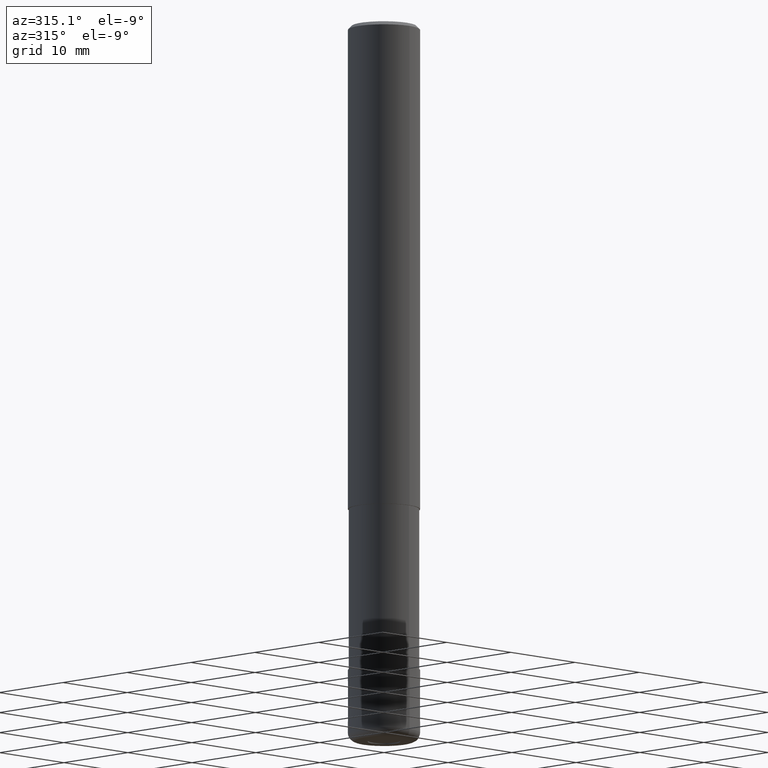
[diagram: clean part render]
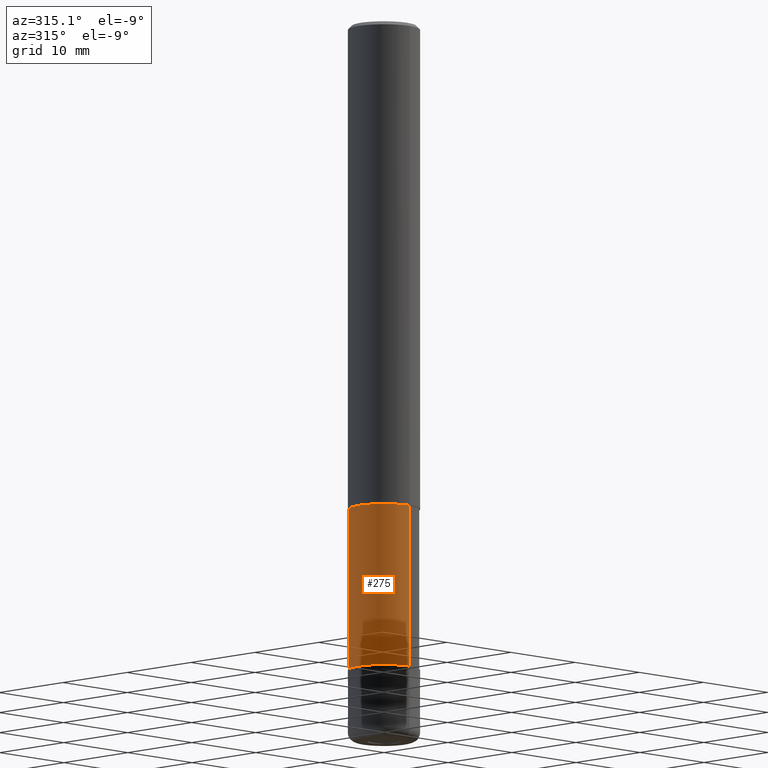
[diagram: same view with one face highlighted and labeled with its STEP entity id]
A machine part, auxiliary view. The second image highlights one B-rep face of the part: STEP entity #275.
In plain terms, the highlighted cylindrical surface (edge-blend (fillet) strip) has radius 3.9049 mm, axis along (-0, -0, 1).
Its self-contained STEP definition (entity closure, byte-faithful):
#121=VERTEX_POINT('',#308);
#137=EDGE_CURVE('',#217,#121,#326,.T.);
#213=VERTEX_POINT('',#415);
#217=VERTEX_POINT('',#419);
#255=EDGE_CURVE('',#213,#217,#461,.T.);
#267=EDGE_CURVE('',#281,#213,#475,.T.);
#275=ADVANCED_FACE('',(#484),#485,.T.);
#277=EDGE_CURVE('',#281,#121,#487,.T.);
#281=VERTEX_POINT('',#492);
#308=CARTESIAN_POINT('',(0.0,3.90495,-72.0));
#326=LINE('',#538,#539);
#415=CARTESIAN_POINT('',(4.78202658135869E-016,-3.90495,-54.0));
#419=CARTESIAN_POINT('',(0.0,3.90495,-54.0));
#461=CIRCLE('',#707,3.90495);
#475=LINE('',#723,#724);
#484=FACE_OUTER_BOUND('',#733,.T.);
#485=CYLINDRICAL_SURFACE('',#734,3.90495);
#487=CIRCLE('',#737,3.90495);
#492=CARTESIAN_POINT('',(4.78202658135869E-016,-3.90495,-72.0));
#538=CARTESIAN_POINT('',(-4.78202658135869E-016,3.90495,-63.0));
#539=VECTOR('',#772,1.0);
#707=AXIS2_PLACEMENT_3D('',#946,#947,#948);
#723=CARTESIAN_POINT('',(4.78202658135869E-016,-3.90495,-63.0));
#724=VECTOR('',#964,1.0);
#733=EDGE_LOOP('',(#974,#975,#976,#977));
#734=AXIS2_PLACEMENT_3D('',#978,#979,#980);
#737=AXIS2_PLACEMENT_3D('',#981,#982,#983);
#772=DIRECTION('',(0.0,0.0,-1.0));
#946=CARTESIAN_POINT('',(0.0,0.0,-54.0));
#947=DIRECTION('',(0.0,0.0,-1.0));
#948=DIRECTION('',(0.0,1.0,0.0));
#964=DIRECTION('',(-0.0,-0.0,1.0));
#974=ORIENTED_EDGE('',*,*,#137,.T.);
#975=ORIENTED_EDGE('',*,*,#277,.F.);
#976=ORIENTED_EDGE('',*,*,#267,.T.);
#977=ORIENTED_EDGE('',*,*,#255,.T.);
#978=CARTESIAN_POINT('',(0.0,0.0,-63.0));
#979=DIRECTION('',(-0.0,-0.0,1.0));
#980=DIRECTION('',(0.0,1.0,0.0));
#981=CARTESIAN_POINT('',(0.0,0.0,-72.0));
#982=DIRECTION('',(0.0,0.0,-1.0));
#983=DIRECTION('',(0.0,1.0,0.0));